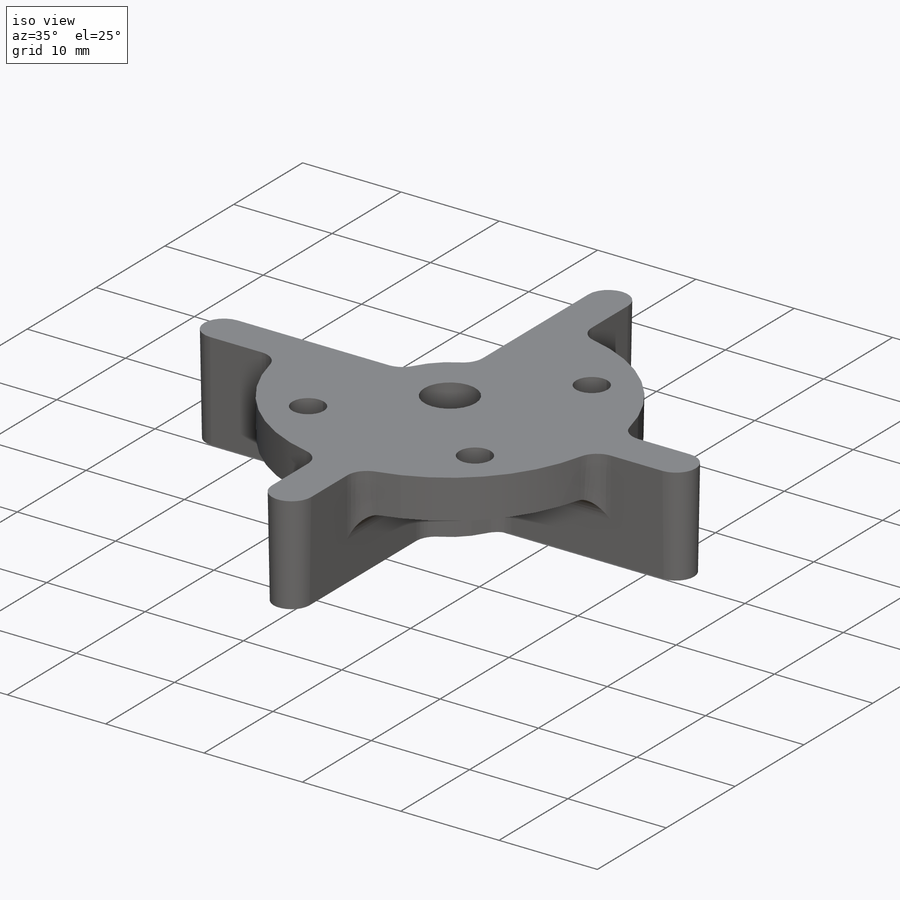
[diagram: iso view]
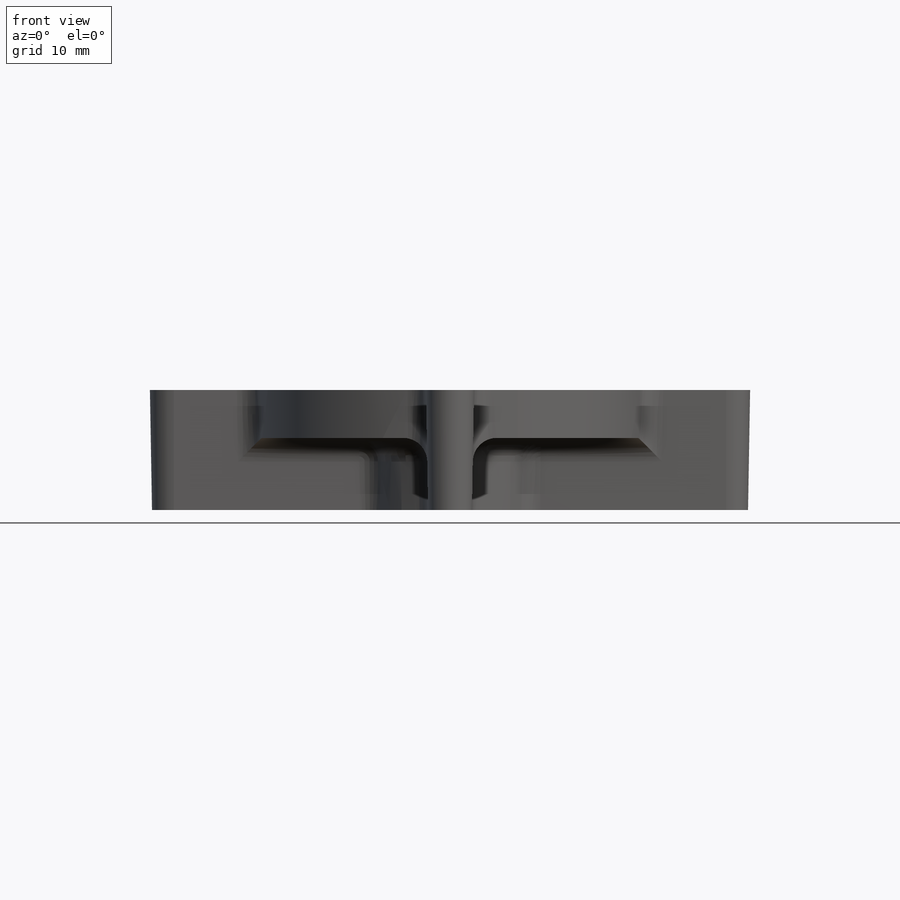
[diagram: front view]
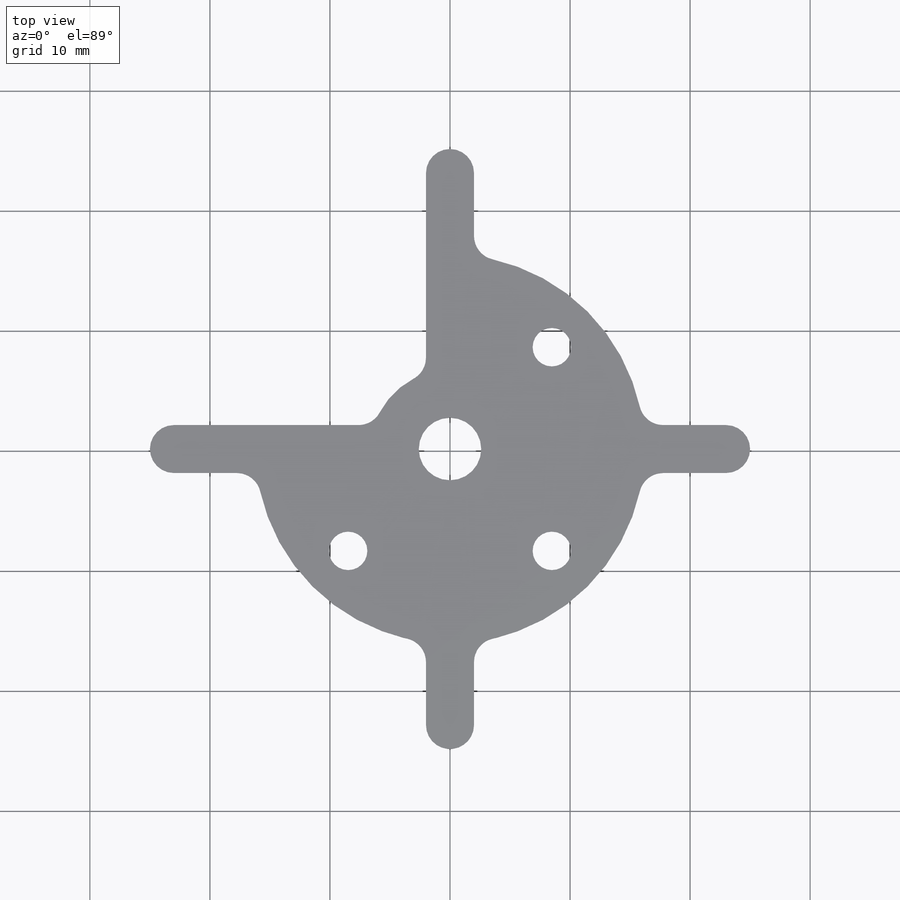
[diagram: top view]
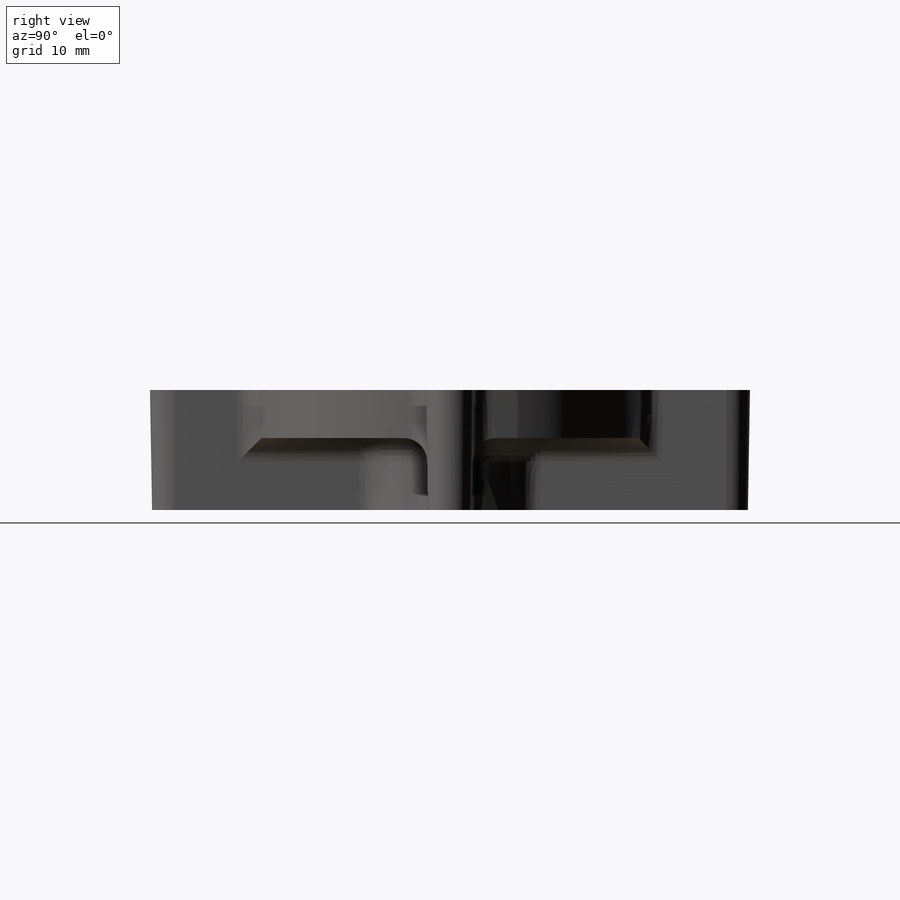
[diagram: right view]
SOLIDWORKS PART (.sldprt)
format: sldprt  version: not decoded by parser v0  size: 742,400 bytes
history: native  units: mm
features: sketch x3, extrude x2, fillet x2, material x1, cut_extrude x1 (+11 scaffold rows collapsed)
feature tree (20):
  scaffold x11  (default folders/planes/origin — collapsed)
  material  "Material <not specified>"
  sketch  "Sketch2"  dims[c1.D1=~2.020325mm c1.D2=5.2mm c1.D8=2.0mm c1.D10=2.0mm c1.D3=2.0mm c1.D4=2.5mm c2.D1=8.5mm c2.D3=~48.083261mm c3.D3=~0.842524deg c4.D3=~2.146447mm c4.D7=8.5mm c4.D9=50.0mm c4.D1=4.0mm c5.D1=2.5mm c5.D2=2.5mm c5.D3=2.5mm c5.D4=2.5mm c6.D3=2.0mm c6.D4=2.0mm c6.D5=2.0mm c6.D6=2.0mm]
  extrude  "Boss-Extrude2"  Depth=10mm
  sketch  "Sketch8"  dims[c1.D1=30.0mm c1.D2=5.0mm c2.D1=16.2mm]
  extrude  "Boss-Extrude4"  Depth=4mm
  sketch  "Sketch3"  dims[c1.D1=5.0mm c1.D3=5.0mm c1.D4=5.0mm c1.D5=~2.867456mm c1.D6=2.5mm c2.D1=24.0mm c2.D3=3.2mm c3.D1=12.0mm c3.D3=12.0mm c3.D5=12.0mm c3.D2=4.0]
  cut_extrude  "Cut-Extrude1"  [1 undecoded]
  fillet  "Fillet2"  Radius=2mm
  fillet  "Fillet3"  Radius=2mm
decode coverage: 7 of 8 modeling features carry decoded parameters
note: ~ marks probable driven/reference dimensions
note: 1 parameter value undecoded
note: suppression state not decoded; provenance and decode notes live in map.json
